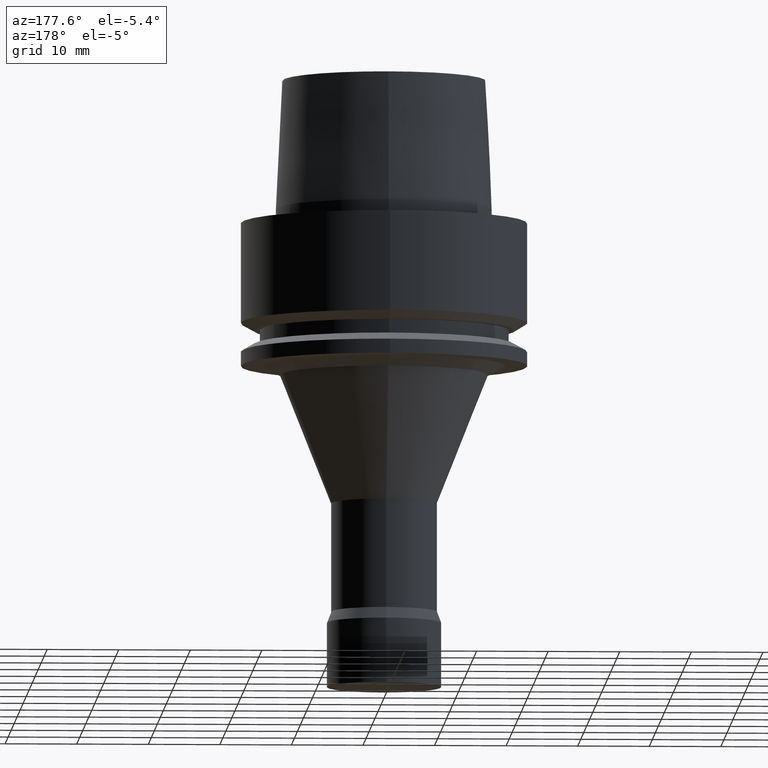
[diagram: clean part render]
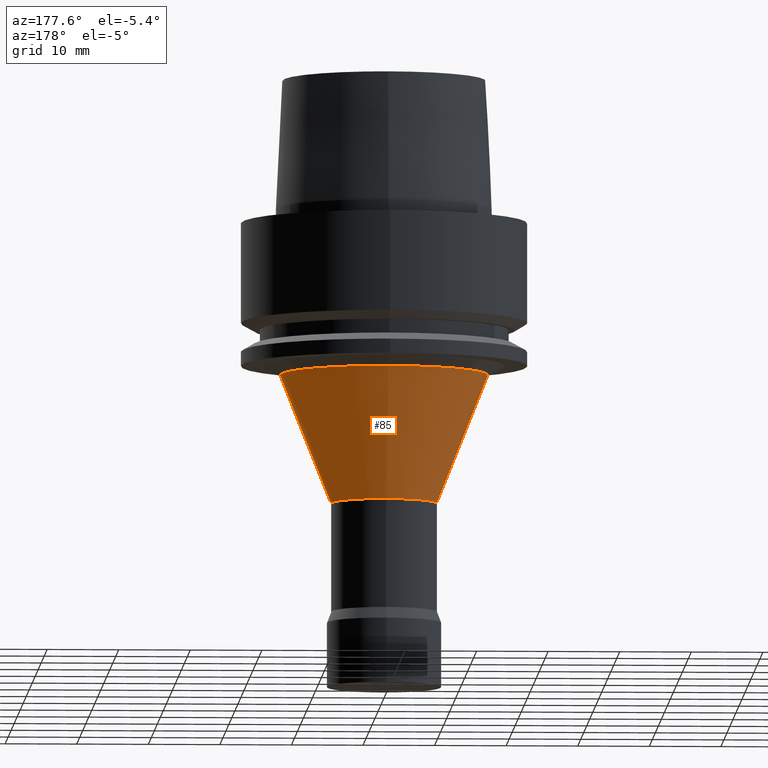
[diagram: same view with one face highlighted and labeled with its STEP entity id]
A machine part, auxiliary view. The second image highlights one B-rep face of the part: STEP entity #85.
In plain terms, the highlighted conical surface has half-angle 21.593 deg.
Its self-contained STEP definition (entity closure, byte-faithful):
#85=ADVANCED_FACE('',(#124,#125),#126,.T.);
#124=FACE_BOUND('',#176,.T.);
#125=FACE_BOUND('',#177,.T.);
#126=CONICAL_SURFACE('',#178,10.9585307658628,0.376866628142091);
#176=EDGE_LOOP('',(#248));
#177=EDGE_LOOP('',(#249));
#178=AXIS2_PLACEMENT_3D('',#250,#251,#252);
#248=ORIENTED_EDGE('',*,*,#297,.F.);
#249=ORIENTED_EDGE('',*,*,#296,.T.);
#250=CARTESIAN_POINT('',(1.85298919646342E-015,3.70597839292685E-015,-30.2616100863293));
#251=DIRECTION('',(-6.12323399573677E-017,-1.22464679914735E-016,1.0));
#252=DIRECTION('',(-1.23259516440783E-032,1.0,1.22464679914735E-016));
#296=EDGE_CURVE('',#323,#323,#324,.T.);
#297=EDGE_CURVE('',#325,#325,#326,.T.);
#323=VERTEX_POINT('',#357);
#324=CIRCLE('',#358,14.5170615317257);
#325=VERTEX_POINT('',#359);
#326=CIRCLE('',#360,7.4);
#357=CARTESIAN_POINT('',(1.30244354593314E-015,14.5170615317257,-21.2705172926587));
#358=AXIS2_PLACEMENT_3D('',#401,#402,#403);
#359=CARTESIAN_POINT('',(2.4035348469937E-015,7.4,-39.25270288));
#360=AXIS2_PLACEMENT_3D('',#404,#405,#406);
#401=CARTESIAN_POINT('',(1.30244354593315E-015,2.60488709186629E-015,-21.2705172926587));
#402=DIRECTION('',(6.12323399573677E-017,1.22464679914735E-016,-1.0));
#403=DIRECTION('',(-1.23259516440783E-032,1.0,1.22464679914735E-016));
#404=CARTESIAN_POINT('',(2.4035348469937E-015,4.80706969398741E-015,-39.25270288));
#405=DIRECTION('',(6.12323399573677E-017,1.22464679914735E-016,-1.0));
#406=DIRECTION('',(-1.23259516440783E-032,1.0,1.22464679914735E-016));